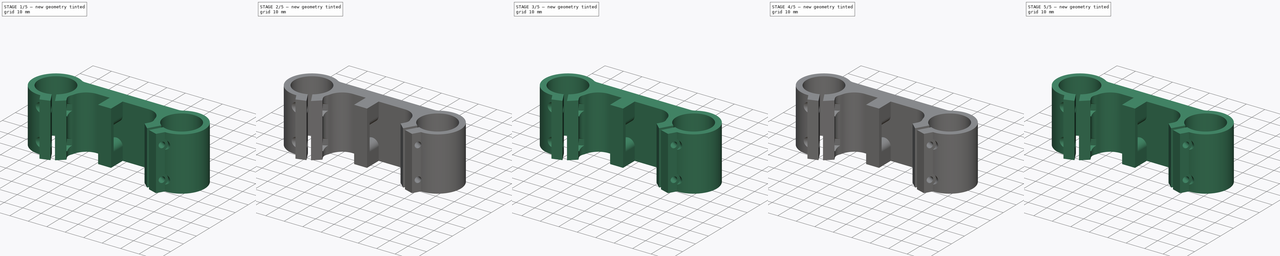
[diagram: build sequence overview — one tinted view per stage of 5, left to right]
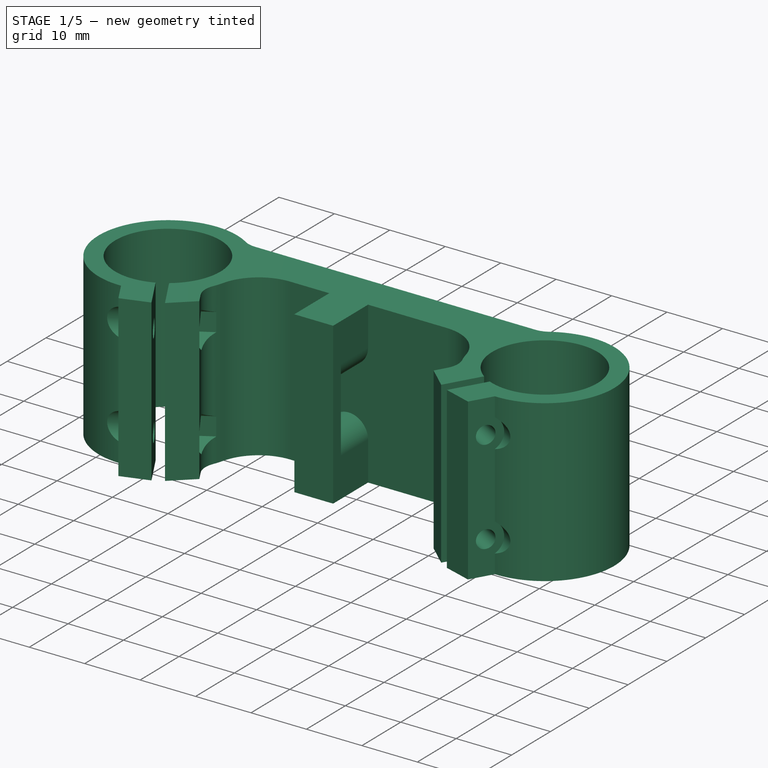
[diagram: stage 1 of 5 — iso view after this stage's code; geometry added in this stage tinted green]
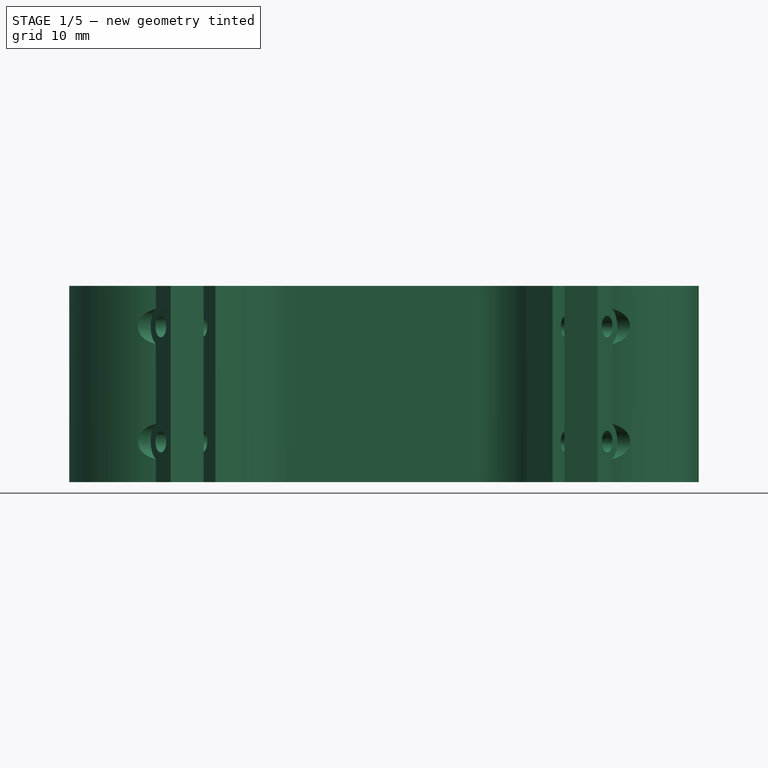
[diagram: stage 1 of 5 — front view after this stage's code; geometry added in this stage tinted green]
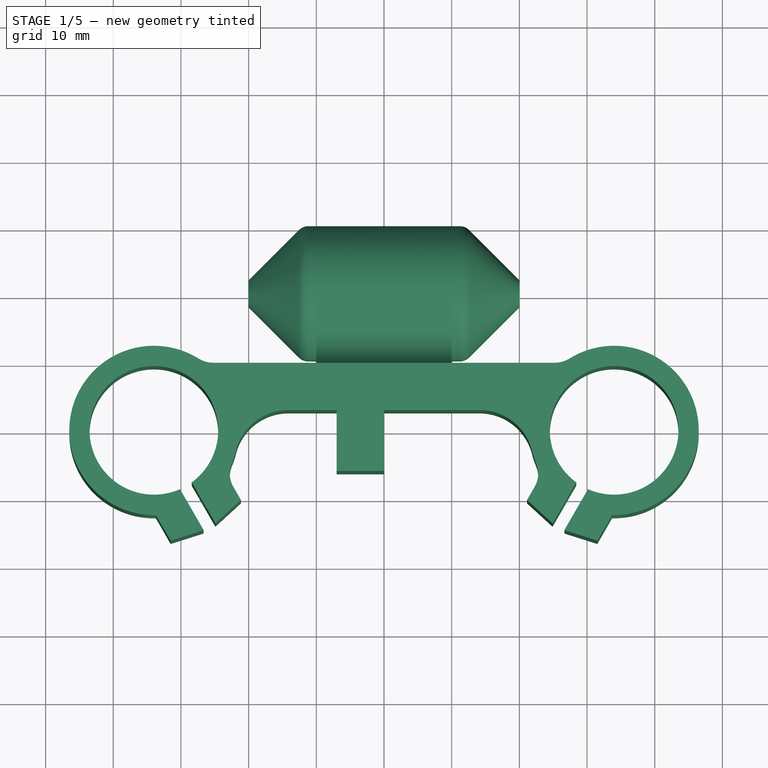
[diagram: stage 1 of 5 — top view after this stage's code; geometry added in this stage tinted green]
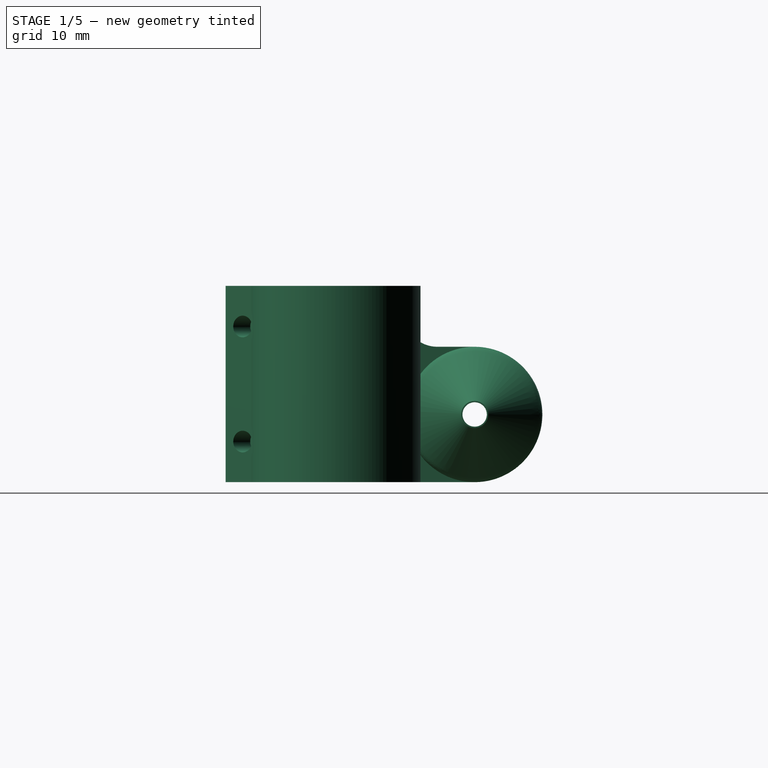
[diagram: stage 1 of 5 — right view after this stage's code; geometry added in this stage tinted green]
FCSTD DOCUMENT  (FreeCAD 0.16R6706 (Git))
Label: cariage
License: All rights reserved
LicenseURL: http://en.wikipedia.org/wiki/All_rights_reserved
objects: Sketcher::SketchObject×9, PartDesign::Pad×5, PartDesign::Pocket×4, PartDesign::Fillet×4, PartDesign::Chamfer×1, Part::MultiFuse×1
note: 33 computed .brp shape members not serialized (recipe doc carries the construction recipe); baked Part::Feature solids carry a one-line shape summary decoded from their .brp

FEATURE [PartDesign::Fillet] Fillet004
  Radius = 2
FEATURE [Sketcher::SketchObject] Sketch010
  Placement = pos=(0,3,0) rot=(1,0,0;1.5708rad)
  sketch-geometry (8):
    g0: LineSegment StartX=0 StartY=7.00001 StartZ=0 EndX=0 EndY=0 EndZ=0
    g1: LineSegment StartX=0 StartY=0 StartZ=0 EndX=-7 EndY=0 EndZ=0
    g2: LineSegment StartX=-7 StartY=0 StartZ=0 EndX=-7 EndY=7.00001 EndZ=0
    g3: ArcOfCircle CenterX=-3.5 CenterY=7 CenterZ=0 NormalX=0 NormalY=0 NormalZ=1 Radius=3.5 StartAngle=2.95218e-06 EndAngle=3.14159
    g4: LineSegment StartX=0 StartY=29 StartZ=0 EndX=-7 EndY=29 EndZ=0
    g5: LineSegment StartX=-7 StartY=29 StartZ=0 EndX=-7 EndY=22 EndZ=0
    g6: LineSegment StartX=0 StartY=22 StartZ=0 EndX=0 EndY=29 EndZ=0
    g7: ArcOfCircle CenterX=-3.5 CenterY=22 CenterZ=0 NormalX=0 NormalY=0 NormalZ=1 Radius=3.5 StartAngle=3.14159 EndAngle=6.28319
  constraints (23):
    c: Coincident(g0,g1)
    c: Coincident(g1,g2)
    c: Horizontal(g1)
    c: Vertical(g0)
    c: Vertical(g2)
    c: Coincident(g0,g-1)
    c: DistanceX(g1) = -7
    c: Coincident(g3,g2)
    c: Coincident(g3,g0)
    c: Tangent(g3,g2)
    c: Tangent(g3,g0)
    c: Coincident(g4,g5)
    c: Coincident(g6,g4)
    c: Horizontal(g4)
    c: Vertical(g5)
    c: Vertical(g6)
    c: Coincident(g7,g6)
    c: Coincident(g7,g5)
    c: Tangent(g7,g5)
    c: Equal(g6,g5)
    c: DistanceX(g4,g4) = 7
    c: DistanceY(g7,g4) = 7
    c: DistanceY(g-1,g3) = 7
FEATURE [PartDesign::Pad] Pad003
  Length = 7
  Length2 = 100
  Placement = pos=(0,3,0) rot=(1,0,0;1.5708rad)
  Sketch = -> Sketch010
  Type = 0
FEATURE [Sketcher::SketchObject] Sketch011
  Placement = pos=(0,-4,0) rot=(1,0,0;1.5708rad)
  Support = -> Pad003 [Face40]
  sketch-geometry (4):
    g0: LineSegment StartX=-7 StartY=29 StartZ=0 EndX=0 EndY=29 EndZ=0
    g1: LineSegment StartX=0 StartY=29 StartZ=0 EndX=0 EndY=0 EndZ=0
    g2: LineSegment StartX=0 StartY=0 StartZ=0 EndX=-7 EndY=0 EndZ=0
    g3: LineSegment StartX=-7 StartY=0 StartZ=0 EndX=-7 EndY=29 EndZ=0
FEATURE [PartDesign::Pad] Pad004
  Length = 2
  Length2 = 100
  Sketch = -> Sketch011
  Type = 0
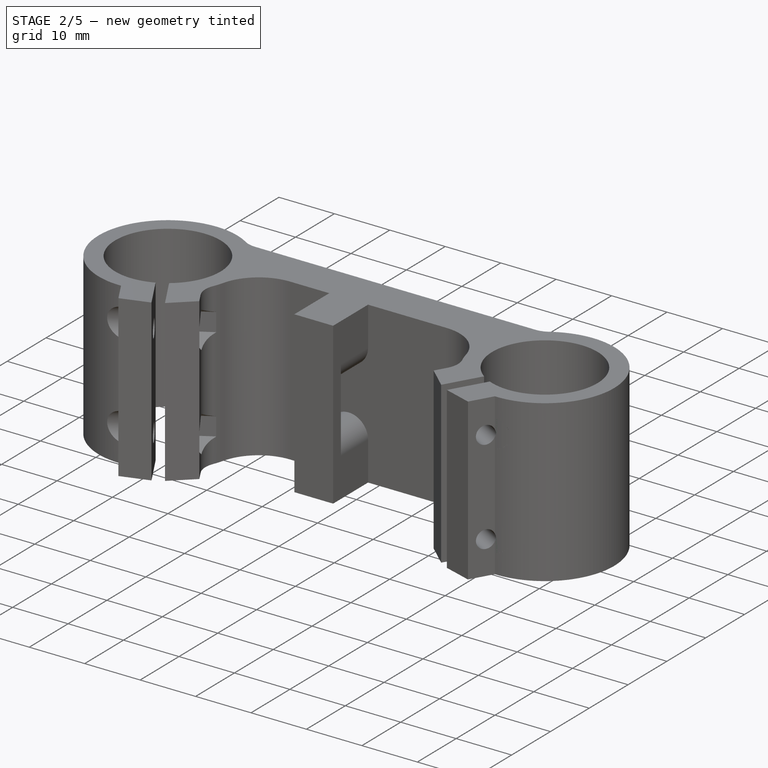
[diagram: stage 2 of 5 — iso view after this stage's code; geometry added in this stage tinted green]
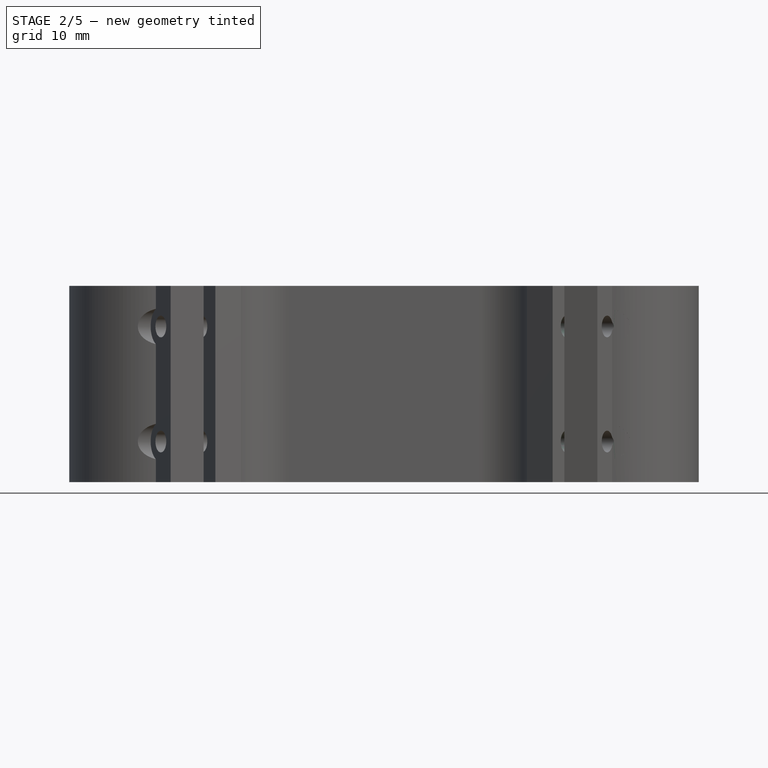
[diagram: stage 2 of 5 — front view after this stage's code; geometry added in this stage tinted green]
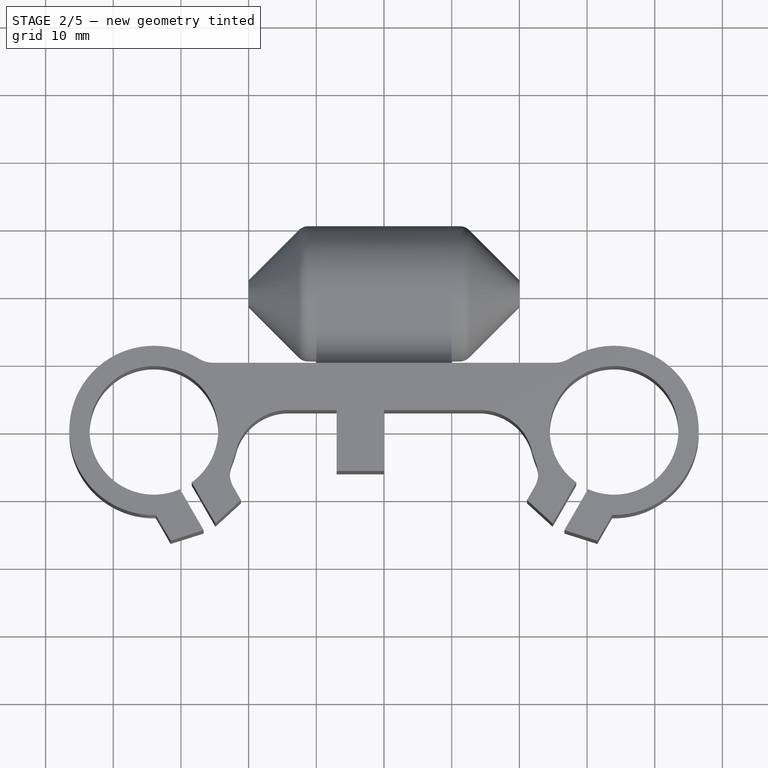
[diagram: stage 2 of 5 — top view after this stage's code; geometry added in this stage tinted green]
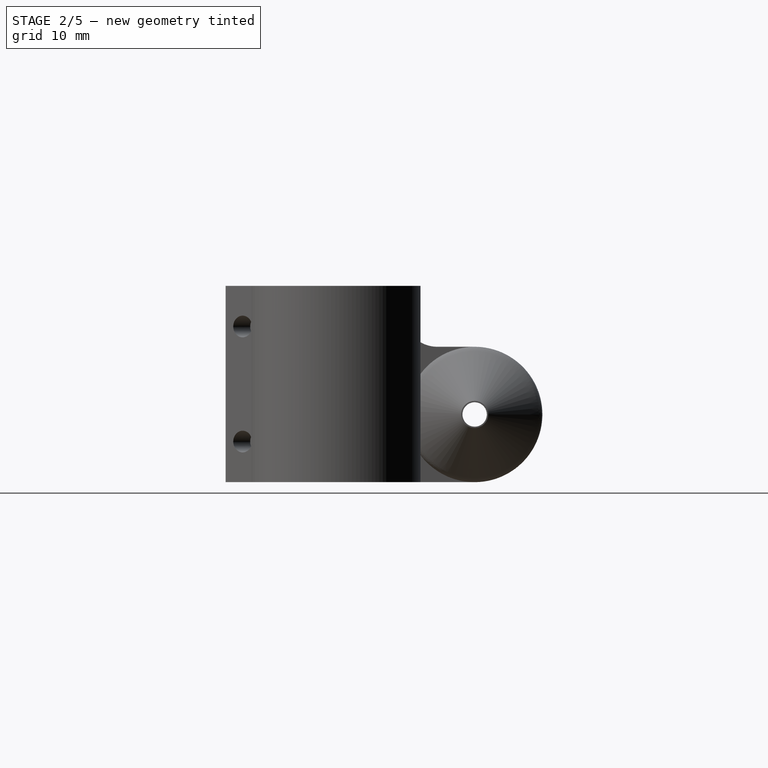
[diagram: stage 2 of 5 — right view after this stage's code; geometry added in this stage tinted green]
FEATURE [Sketcher::SketchObject] Sketch
  sketch-geometry (14):
    g0: ArcOfCircle CenterX=34 CenterY=0 CenterZ=0 NormalX=0 NormalY=0 NormalZ=1 Radius=9.5 StartAngle=4.29425 EndAngle=10.3665
    g1: ArcOfCircle CenterX=34 CenterY=0 CenterZ=0 NormalX=0 NormalY=0 NormalZ=1 Radius=12.5 StartAngle=2.89923 EndAngle=3.68814
    g2: LineSegment StartX=26.5 StartY=10 StartZ=0 EndX=0 EndY=10 EndZ=0
    g3: LineSegment StartX=21.8653 StartY=3 StartZ=0 EndX=0 EndY=3 EndZ=0
    g4: LineSegment StartX=0 StartY=10 StartZ=0 EndX=0 EndY=3 EndZ=0
    g5: ArcOfCircle CenterX=34 CenterY=0 CenterZ=0 NormalX=0 NormalY=0 NormalZ=1 Radius=12.5 StartAngle=4.68944 EndAngle=8.49748
    g6: LineSegment [constr] StartX=34 StartY=0 StartZ=0 EndX=27.75 EndY=-10.8253 EndZ=0
    g7: LineSegment StartX=23.3209 StartY=-6.49671 StartZ=0 EndX=21.1307 EndY=-10.2903 EndZ=0
    g8: LineSegment StartX=30.1424 StartY=-8.68153 StartZ=0 EndX=26.6424 EndY=-14.7437 EndZ=0
    g9: LineSegment StartX=26.6424 StartY=-14.7437 StartZ=0 EndX=31.523 EndY=-16.2903 EndZ=0
    g10: LineSegment StartX=31.523 StartY=-16.2903 StartZ=0 EndX=33.7132 EndY=-12.4967 EndZ=0
    g11: LineSegment StartX=28.4104 StartY=-7.68153 StartZ=0 EndX=24.9104 EndY=-13.7437 EndZ=0
    g12: LineSegment StartX=24.9104 StartY=-13.7437 StartZ=0 EndX=21.1307 EndY=-10.2903 EndZ=0
    g13: Circle [constr] CenterX=34 CenterY=0 CenterZ=0 NormalX=0 NormalY=0 NormalZ=1 Radius=16.4776
  constraints (41):
    c: PointOnObject(g0,g-1)
    c: Radius(g0) = 9.5
    c: DistanceX(g-1,g0) = 34
    c: Coincident(g1,g0)
    c: PointOnObject(g2,g-2)
    c: Horizontal(g2)
    c: PointOnObject(g3,g-2)
    c: Horizontal(g3)
    c: Coincident(g4,g2)
    c: Coincident(g4,g3)
    c: Coincident(g1,g3)
    c: Coincident(g5,g2)
    c: Equal(g1,g5)
    c: Coincident(g1,g5)
    c: Coincident(g6,g0)
    c: PointOnObject(g6,g5)
    c: Symmetric(g0,g0,g6)
    c: DistanceY(g-1,g3) = 3
    c: DistanceY(g4) = -7
    c: Angle(g6) = -2.0944
    c: Coincident(g8,g9)
    c: Coincident(g9,g10)
    c: Coincident(g11,g12)
    c: Coincident(g12,g7)
    c: Coincident(g1,g7)
    c: Coincident(g5,g10)
    c: Coincident(g11,g0)
    c: Coincident(g8,g0)
    c: Distance(g0,g0) = 2
    c: Parallel(g6,g11)
    c: Parallel(g11,g8)
    c: Radius(g5) = 12.5
    c: Equal(g8,g11)
    c: Symmetric(g1,g5,g6)
    c: Symmetric(g7,g9,g6)
    c: Distance(g11) = 7
    c: Distance(g5,g1) = 12
    c: Parallel(g7,g11)
    c: Coincident(g13,g0)
    c: PointOnObject(g8,g13)
    c: PointOnObject(g7,g13)
FEATURE [PartDesign::Pad] Pad
  Length = 29
  Length2 = 100
  Sketch = -> Sketch
  Type = 0
FEATURE [Sketcher::SketchObject] Sketch001
  ExternalGeometry = -> [Pad]
  Placement = pos=(24.634,-14.2224,0) rot=(0.774597,0.447214,0.447214;1.82348rad)
  Support = -> Pad [Face3]
  sketch-geometry (2):
    g0: Circle CenterX=4.55278 CenterY=23 CenterZ=0 NormalX=0 NormalY=0 NormalZ=1 Radius=1.6
    g1: Circle CenterX=4.55278 CenterY=6 CenterZ=0 NormalX=0 NormalY=0 NormalZ=1 Radius=1.6
  constraints (6):
    c: Equal(g1,g0)
    c: Radius(g0) = 1.6
    c: DistanceX(g0,g-3) = 3
    c: DistanceX(g1,g-3) = 3
    c: DistanceY(g0,g-3) = 6
    c: DistanceY(g-3,g1) = 6
FEATURE [PartDesign::Pocket] Pocket
  Length = 20
  Midplane = true
  Sketch = -> Sketch001
  Type = 0
FEATURE [Part::MultiFuse] Fusion
  Shapes = -> [Fillet004,Pad004]
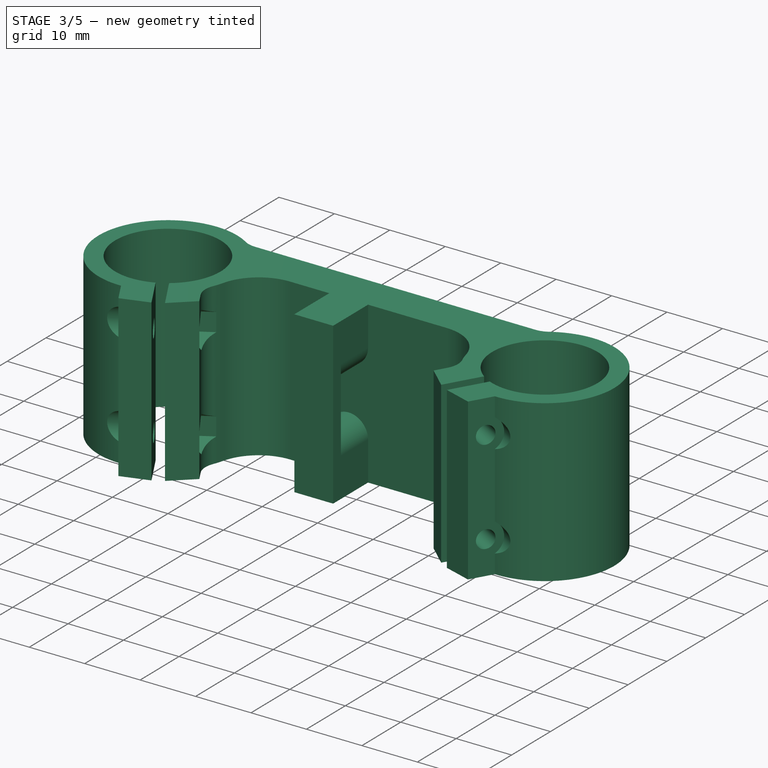
[diagram: stage 3 of 5 — iso view after this stage's code; geometry added in this stage tinted green]
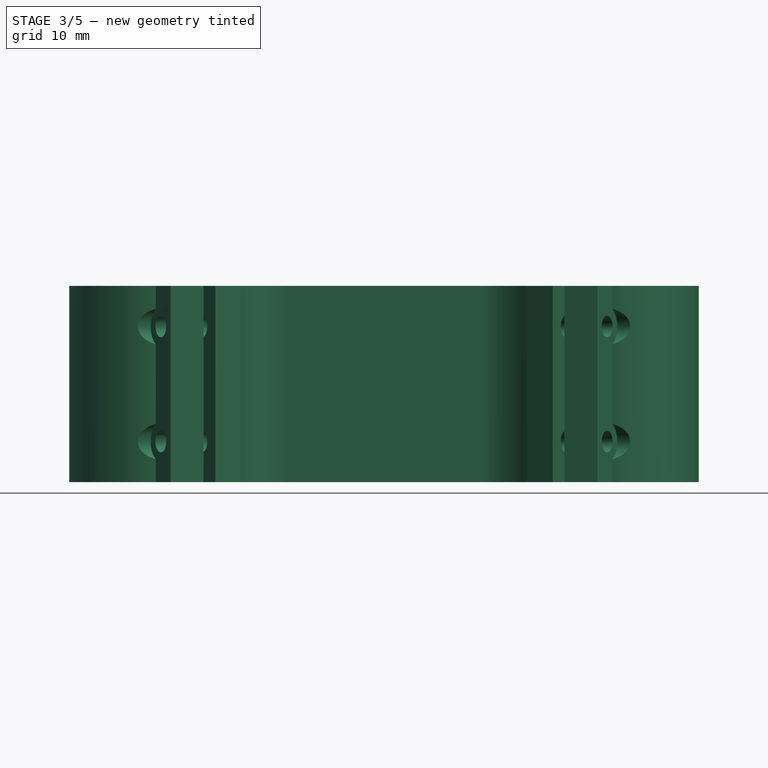
[diagram: stage 3 of 5 — front view after this stage's code; geometry added in this stage tinted green]
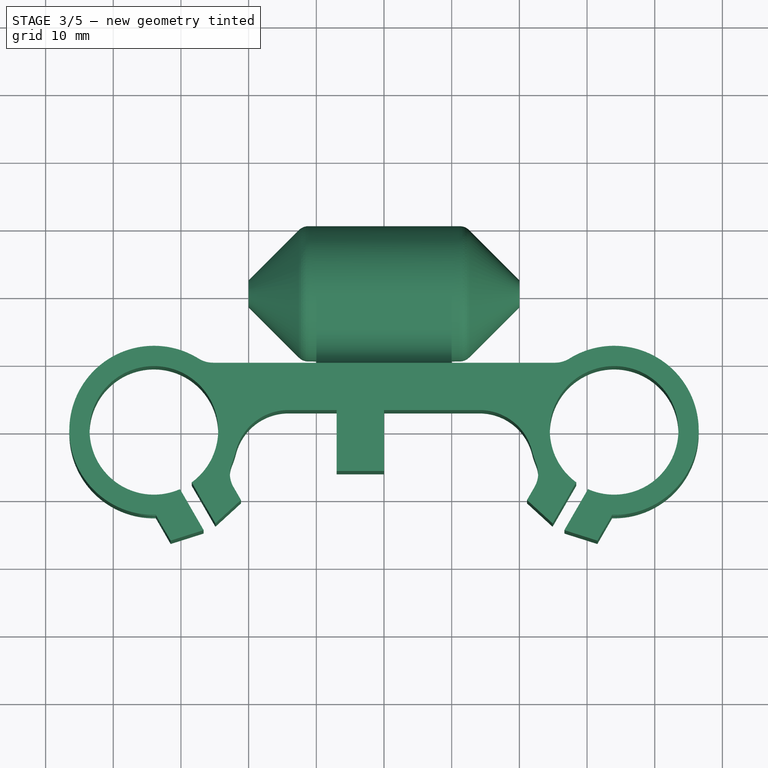
[diagram: stage 3 of 5 — top view after this stage's code; geometry added in this stage tinted green]
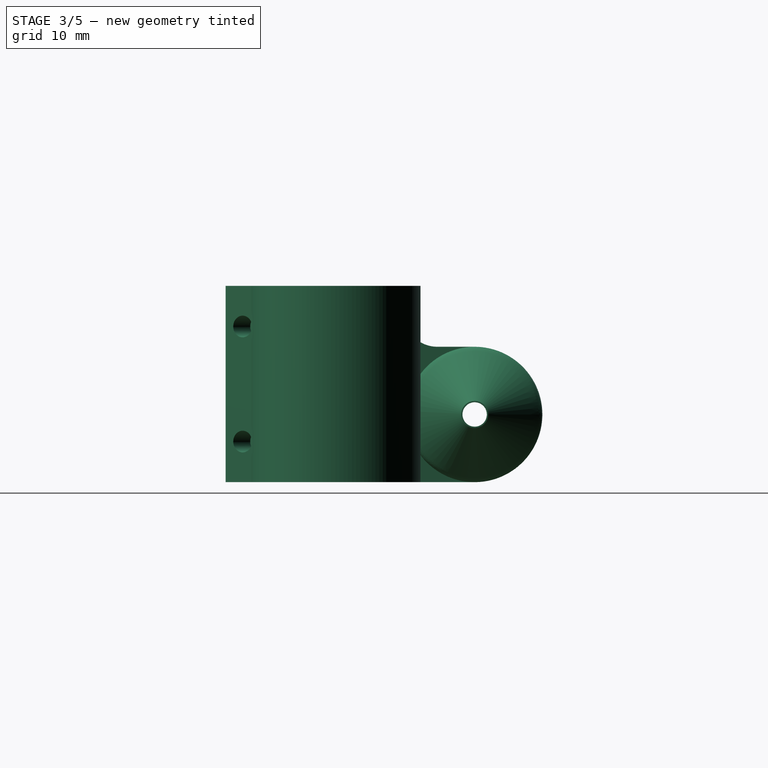
[diagram: stage 3 of 5 — right view after this stage's code; geometry added in this stage tinted green]
FEATURE [Sketcher::SketchObject] Sketch002
  ExternalGeometry = -> [Pocket]
  Placement = pos=(20.3038,-11.7224,0) rot=(-0.377964,0.654654,0.654654;3.86433rad)
  Support = -> Pocket [Face10]
  sketch-geometry (14):
    g0: LineSegment StartX=-1.70278 StartY=21.3546 StartZ=0 EndX=-1.70278 EndY=24.6454 EndZ=0
    g1: LineSegment StartX=-1.70278 StartY=24.6454 StartZ=0 EndX=-4.55278 EndY=26.2909 EndZ=0
    g2: LineSegment StartX=-4.55278 StartY=26.2909 StartZ=0 EndX=-7.40278 EndY=24.6454 EndZ=0
    g3: LineSegment StartX=-7.40278 StartY=24.6454 StartZ=0 EndX=-7.40278 EndY=21.3546 EndZ=0
    g4: LineSegment StartX=-7.40278 StartY=21.3546 StartZ=0 EndX=-4.55278 EndY=19.7091 EndZ=0
    g5: LineSegment StartX=-4.55278 StartY=19.7091 StartZ=0 EndX=-1.70278 EndY=21.3546 EndZ=0
    g6: Circle [constr] CenterX=-4.55278 CenterY=23 CenterZ=0 NormalX=0 NormalY=0 NormalZ=1 Radius=3.2909
    g7: LineSegment StartX=-1.70278 StartY=4.35455 StartZ=0 EndX=-1.70278 EndY=7.64545 EndZ=0
    g8: LineSegment StartX=-1.70278 StartY=7.64545 StartZ=0 EndX=-4.55278 EndY=9.2909 EndZ=0
    g9: LineSegment StartX=-4.55278 StartY=9.2909 StartZ=0 EndX=-7.40278 EndY=7.64545 EndZ=0
    g10: LineSegment StartX=-7.40278 StartY=7.64545 StartZ=0 EndX=-7.40278 EndY=4.35455 EndZ=0
    g11: LineSegment StartX=-7.40278 StartY=4.35455 StartZ=0 EndX=-4.55278 EndY=2.7091 EndZ=0
    g12: LineSegment StartX=-4.55278 StartY=2.7091 StartZ=0 EndX=-1.70278 EndY=4.35455 EndZ=0
    g13: Circle [constr] CenterX=-4.55278 CenterY=6 CenterZ=0 NormalX=0 NormalY=0 NormalZ=1 Radius=3.2909
  constraints (34):
    c: Coincident(g0,g1)
    c: Coincident(g1,g2)
    c: Coincident(g2,g3)
    c: Coincident(g3,g4)
    c: Coincident(g4,g5)
    c: Coincident(g5,g0)
    c: Equal(g0, g1-g5) x5
    c: PointOnObject(g0,g6)
    c: PointOnObject(g1,g6)
    c: PointOnObject(g2,g6)
    c: PointOnObject(g3,g6)
    c: PointOnObject(g4,g6)
    c: PointOnObject(g5,g6)
    c: Coincident(g3,g-3)
    c: Vertical(g0)
    c: DistanceX(g0,g2) = -5.7
    c: Coincident(g-3,g6)
    c: Coincident(g7,g8)
    c: Coincident(g8,g9)
    c: Coincident(g9,g10)
    c: Coincident(g10,g11)
    c: Coincident(g11,g12)
    c: Coincident(g12,g7)
    c: Equal(g7, g8-g12) x5
    c: PointOnObject(g7,g13)
    c: PointOnObject(g8,g13)
    c: PointOnObject(g9,g13)
    c: PointOnObject(g10,g13)
    c: PointOnObject(g11,g13)
    c: PointOnObject(g12,g13)
    c: Coincident(g10,g-4)
    c: Vertical(g7)
    c: Coincident(g13,g-4)
    c: DistanceX(g7,g9) = -5.7
FEATURE [PartDesign::Pocket] Pocket001
  Length = 5
  Midplane = true
  Sketch = -> Sketch002
  Type = 0
FEATURE [Sketcher::SketchObject] Sketch003
  ExternalGeometry = -> [Pocket001]
  Placement = pos=(30.6962,-17.7224,0) rot=(0.774597,0.447214,0.447214;1.82348rad)
  Support = -> Pocket001 [Face16]
  sketch-geometry (2):
    g0: Circle CenterX=4.55278 CenterY=23 CenterZ=0 NormalX=0 NormalY=0 NormalZ=1 Radius=3
    g1: Circle CenterX=4.55278 CenterY=6 CenterZ=0 NormalX=0 NormalY=0 NormalZ=1 Radius=3
  constraints (4):
    c: Coincident(g0,g-3)
    c: Coincident(g1,g-4)
    c: Equal(g1,g0)
    c: Radius(g1) = 3
FEATURE [PartDesign::Pocket] Pocket002
  Length = 4
  Reversed = true
  Sketch = -> Sketch003
  Type = 0
FEATURE [PartDesign::Fillet] Fillet
  Base = -> Pocket002 [Edge66]
  Radius = 8
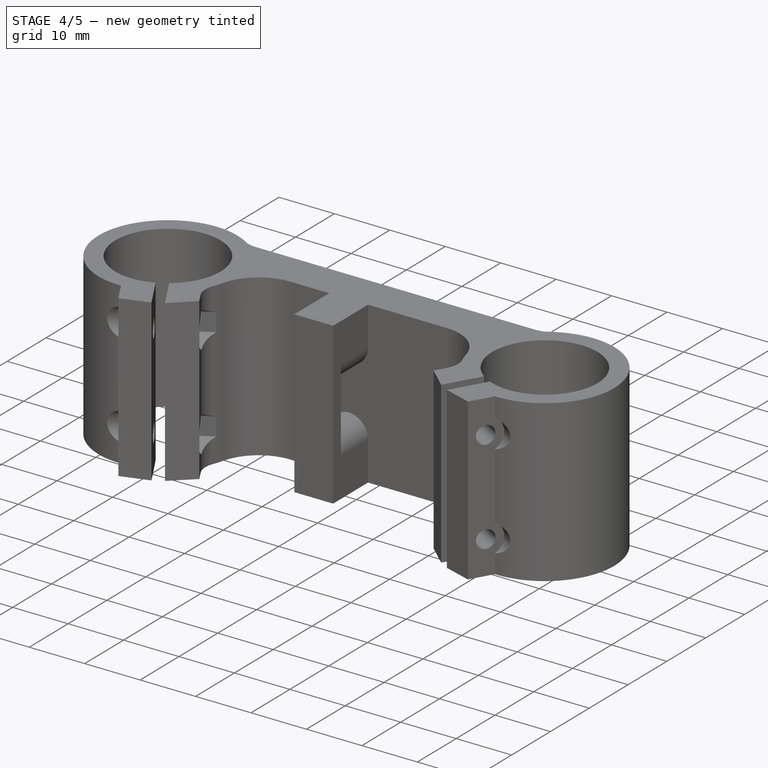
[diagram: stage 4 of 5 — iso view after this stage's code; geometry added in this stage tinted green]
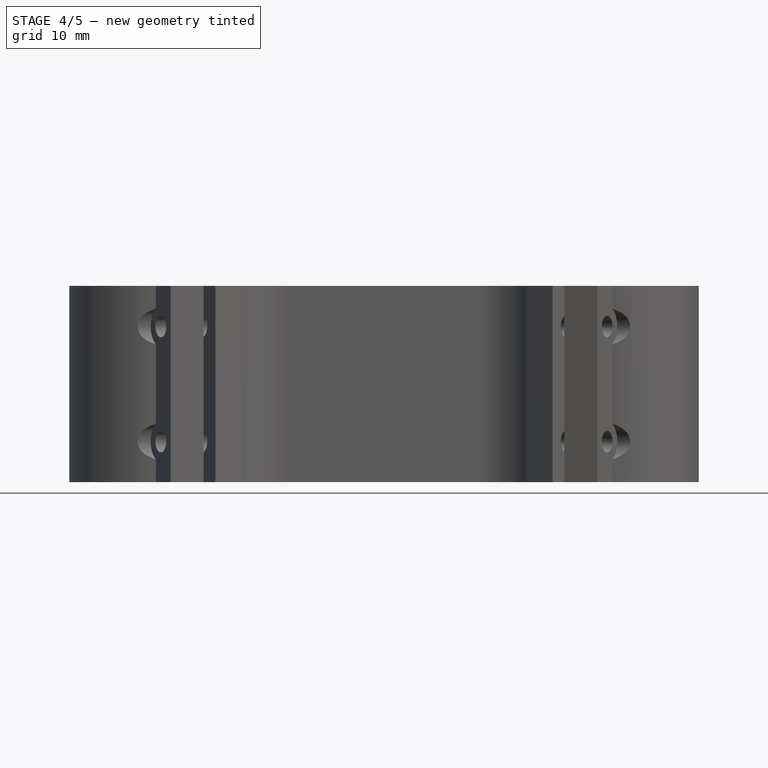
[diagram: stage 4 of 5 — front view after this stage's code; geometry added in this stage tinted green]
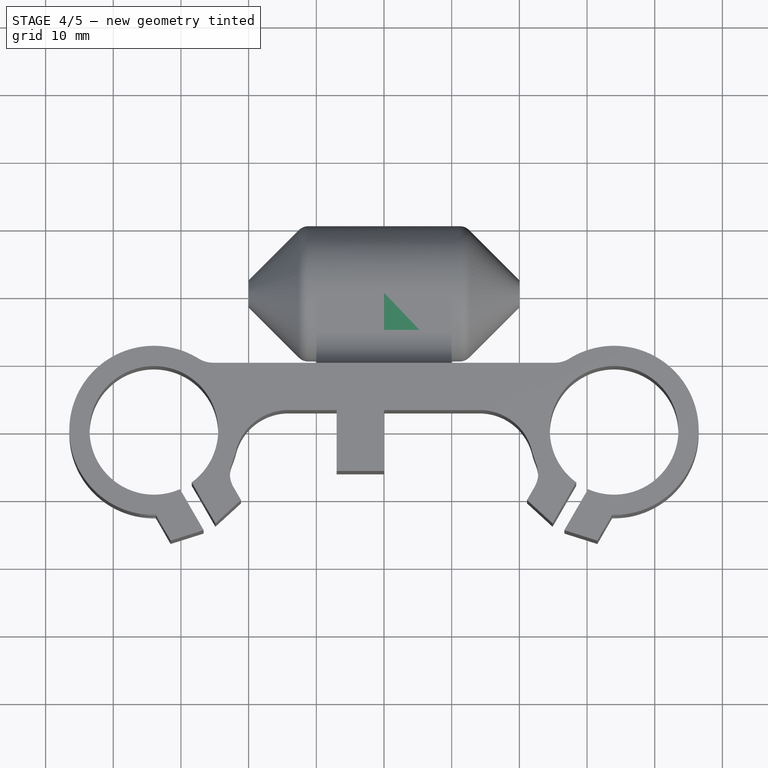
[diagram: stage 4 of 5 — top view after this stage's code; geometry added in this stage tinted green]
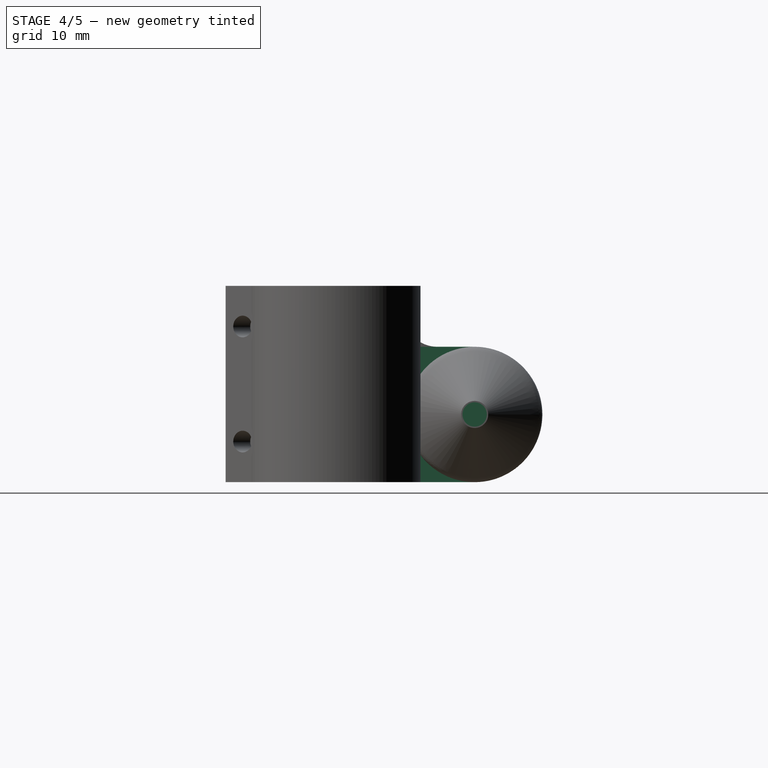
[diagram: stage 4 of 5 — right view after this stage's code; geometry added in this stage tinted green]
FEATURE [PartDesign::Fillet] Fillet001
  Base = -> Fillet [Edge49]
  Radius = 4
FEATURE [PartDesign::Fillet] Fillet002
  Base = -> Fillet001 [Edge45,Edge50,Edge42]
  Radius = 4
FEATURE [Sketcher::SketchObject] Sketch007
  ExternalGeometry = -> [Fillet002]
  Placement = pos=(0,0,0) rot=(0.57735,-0.57735,-0.57735;2.0944rad)
  Support = -> Fillet002 [Face8]
  sketch-geometry (4):
    g0: LineSegment StartX=-10 StartY=0 StartZ=0 EndX=-20.5 EndY=0 EndZ=0
    g1: LineSegment StartX=-20.5 StartY=20 StartZ=0 EndX=-10 EndY=20 EndZ=0
    g2: LineSegment StartX=-10 StartY=20 StartZ=0 EndX=-10 EndY=0 EndZ=0
    g3: ArcOfCircle CenterX=-20.5 CenterY=10 CenterZ=0 NormalX=0 NormalY=0 NormalZ=1 Radius=10 StartAngle=1.57079 EndAngle=4.71239
  constraints (12):
    c: Coincident(g1,g2)
    c: Coincident(g2,g0)
    c: Horizontal(g0)
    c: Horizontal(g1)
    c: Vertical(g2)
    c: Coincident(g0,g-3)
    c: Coincident(g3,g0)
    c: Coincident(g3,g1)
    c: Tangent(g3,g0)
    c: Tangent(g3,g1)
    c: DistanceY(g1,g0) = -20
    c: DistanceX(g3,g1) = 10.5
FEATURE [PartDesign::Pad] Pad001
  Length = 10
  Length2 = 100
  Reversed = true
  Sketch = -> Sketch007
  Type = 0
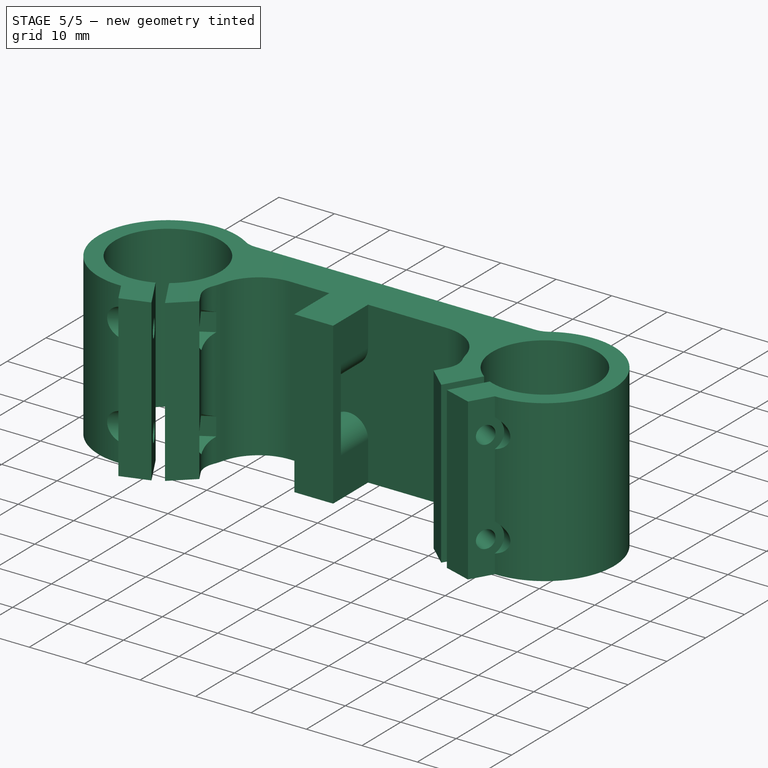
[diagram: stage 5 of 5 — iso view after this stage's code; geometry added in this stage tinted green]
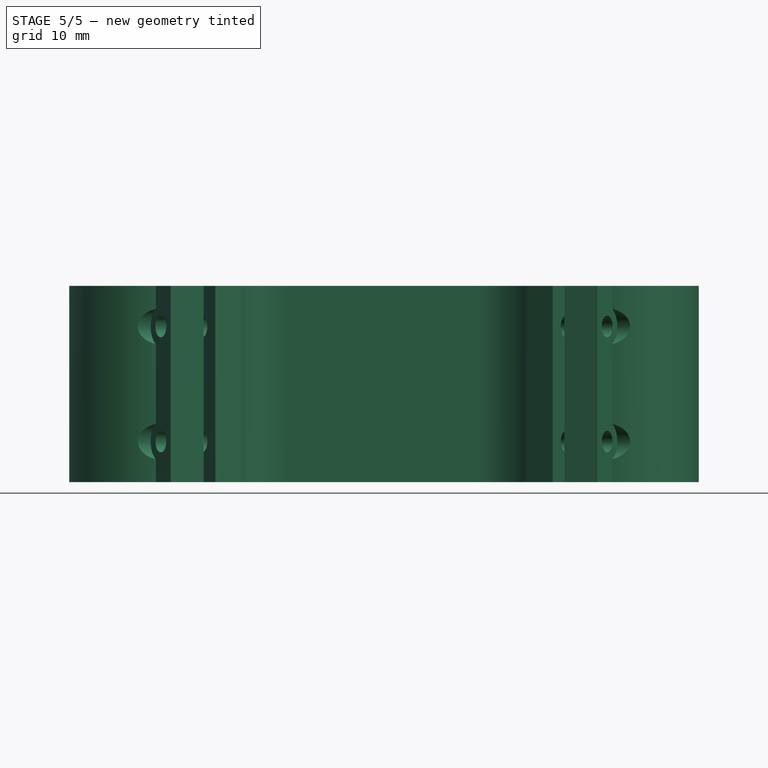
[diagram: stage 5 of 5 — front view after this stage's code; geometry added in this stage tinted green]
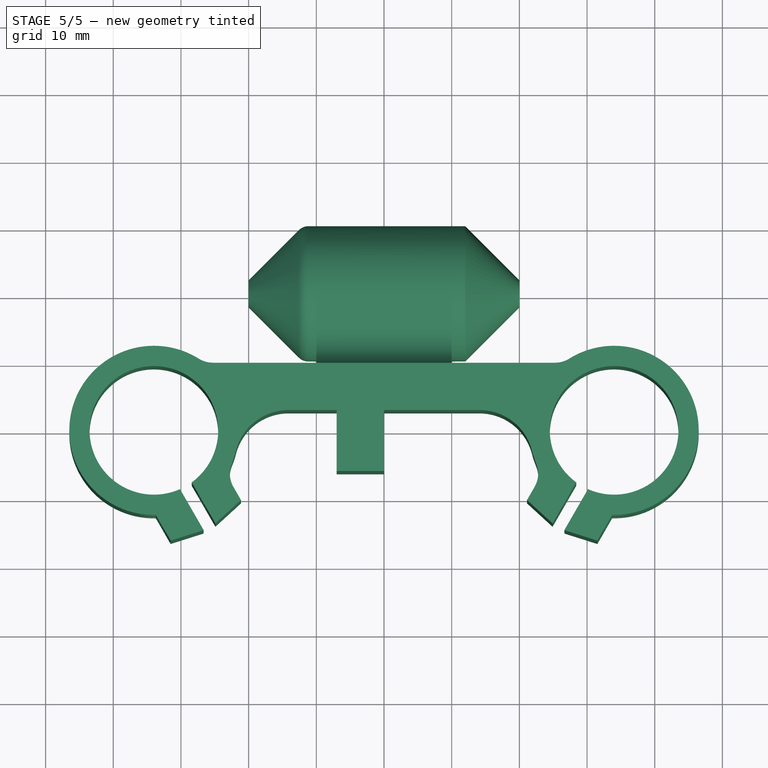
[diagram: stage 5 of 5 — top view after this stage's code; geometry added in this stage tinted green]
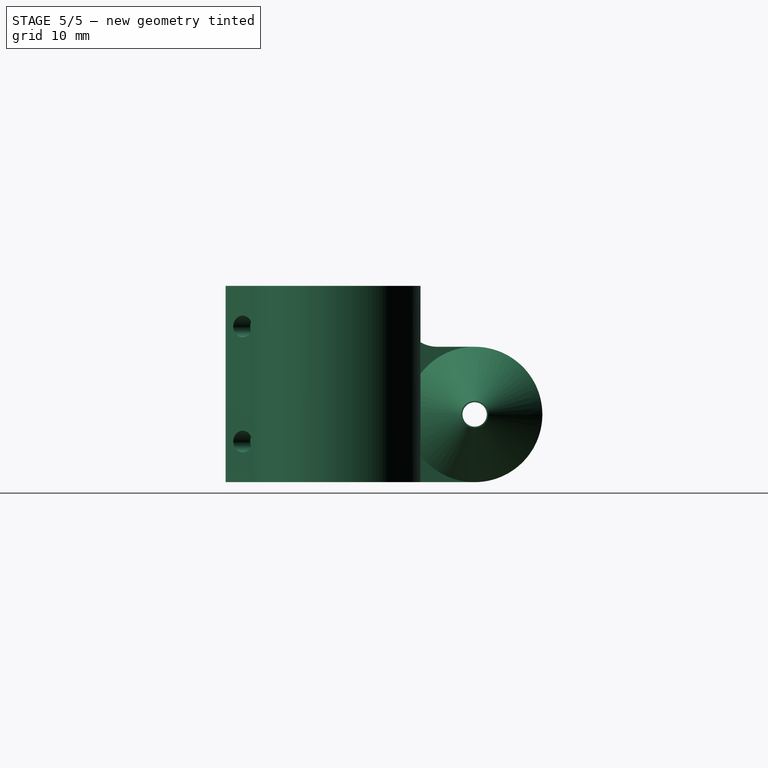
[diagram: stage 5 of 5 — right view after this stage's code; geometry added in this stage tinted green]
FEATURE [Sketcher::SketchObject] Sketch008
  ExternalGeometry = -> [Pad001]
  Placement = pos=(10,0,0) rot=(0.57735,0.57735,0.57735;2.0944rad)
  Support = -> Pad001 [Face5]
  sketch-geometry (1):
    g0: Circle CenterX=20.5 CenterY=10 CenterZ=0 NormalX=0 NormalY=0 NormalZ=1 Radius=10
  constraints (2):
    c: Coincident(g0,g-3)
    c: Radius(g0) = 10
FEATURE [PartDesign::Pad] Pad002
  Length = 10
  Length2 = 100
  Sketch = -> Sketch008
  Type = 0
FEATURE [Sketcher::SketchObject] Sketch009
  ExternalGeometry = -> [Pad002]
  Placement = pos=(20,0,0) rot=(0.57735,0.57735,0.57735;2.0944rad)
  Support = -> Pad002 [Face12]
  sketch-geometry (1):
    g0: Circle CenterX=20.5 CenterY=10 CenterZ=0 NormalX=0 NormalY=0 NormalZ=1 Radius=1.8
  constraints (2):
    c: Coincident(g0,g-3)
    c: Radius(g0) = 1.8
FEATURE [PartDesign::Pocket] Pocket003
  Length = 20
  Sketch = -> Sketch009
  Type = 0
FEATURE [PartDesign::Chamfer] Chamfer
  Base = -> Pocket003 [Edge20]
  Size = 8
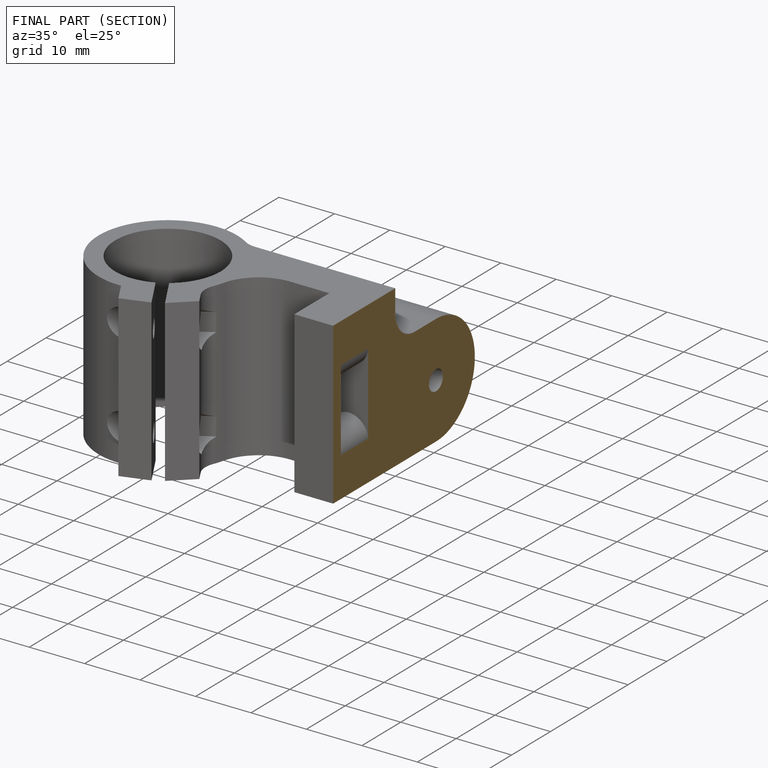
[diagram: finished part — half-section view (interior)]
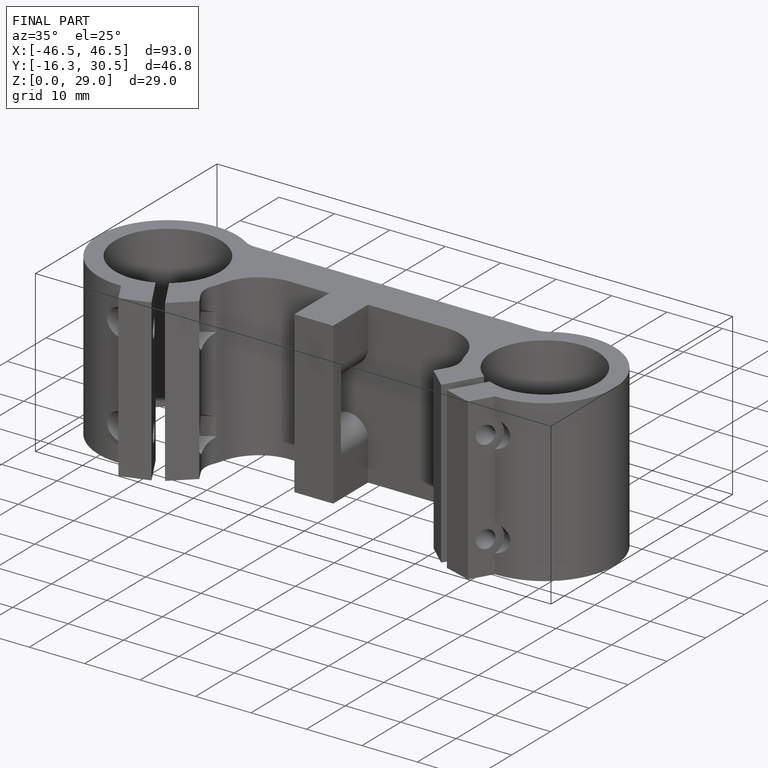
[diagram: finished part — iso view with bounding-box wireframe]
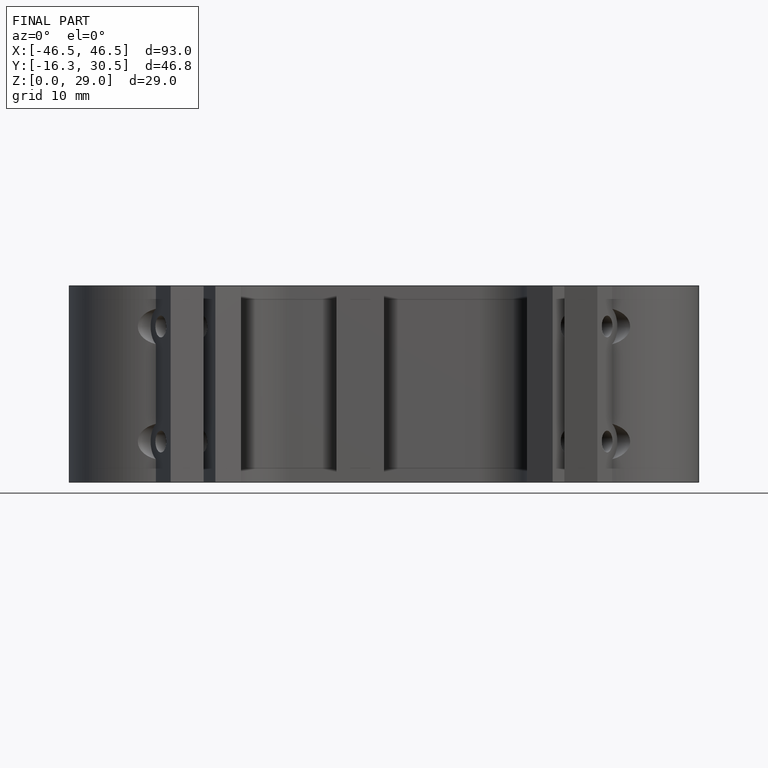
[diagram: finished part — front view with bounding-box wireframe]
